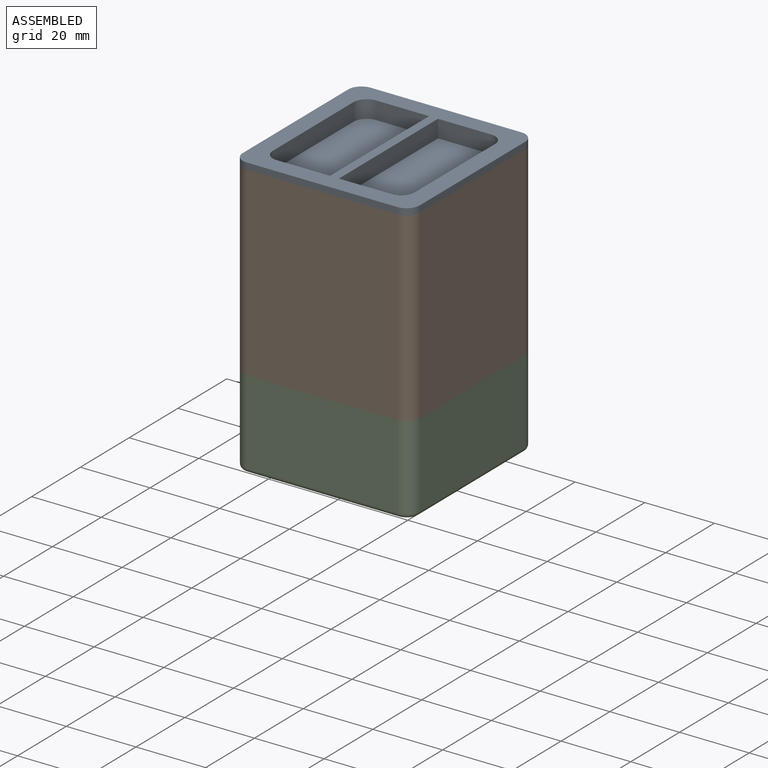
[diagram: assembled view]
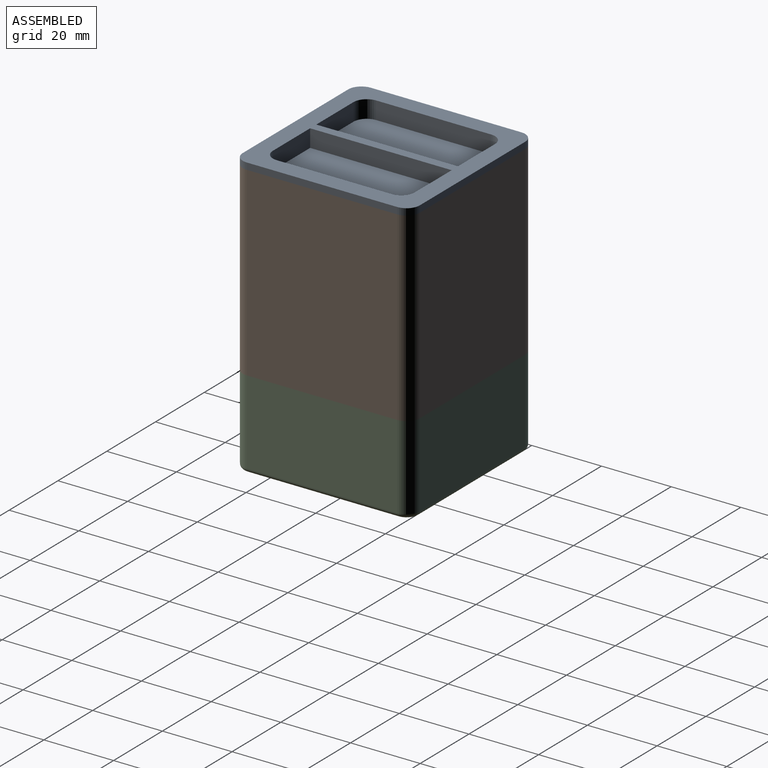
[diagram: assembled view, second angle]
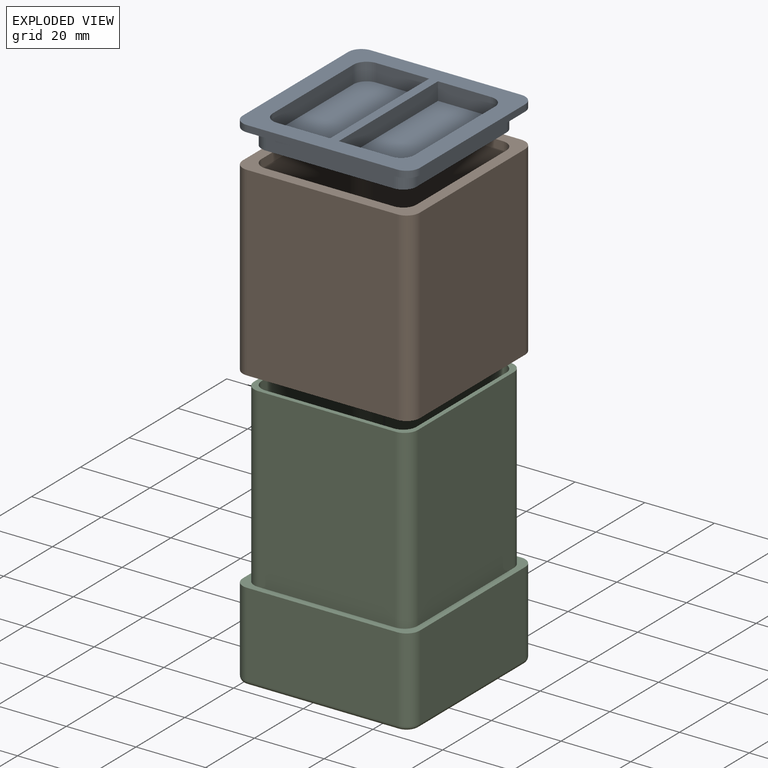
[diagram: exploded view]
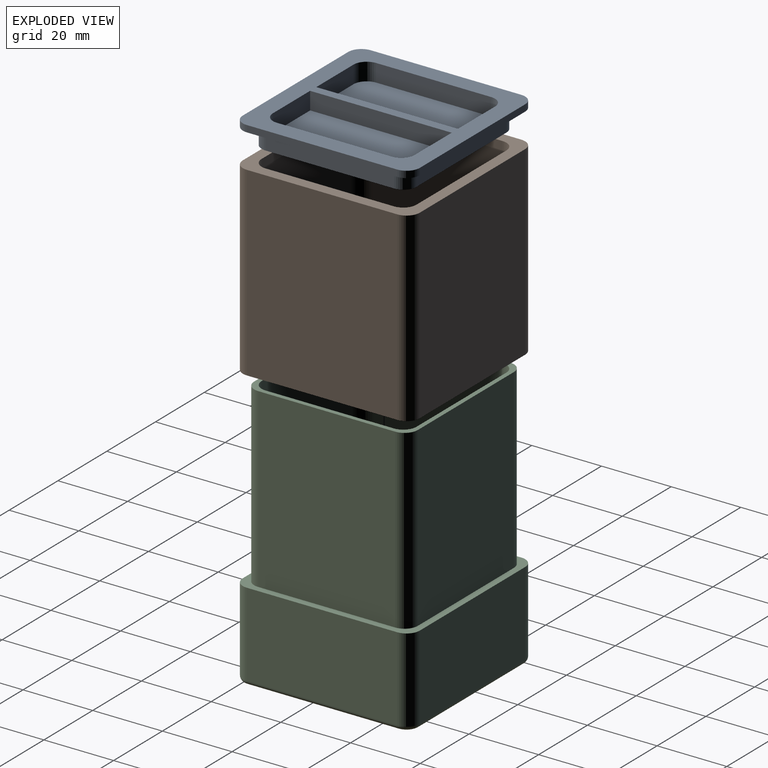
[diagram: exploded view, second angle]
ASSEMBLY  parts=3 mates=2
PART A: 33 faces, bbox 50.8x50.8x7 mm
  f0: plane 50.8x50.8mm, normal (0,0,-1), area 1032.3mm2, adj f2,f3,f4,f5,f12,f13,f14,f15
  f1: plane 50.8x50.8mm, normal (0,0,1), area 604.8mm2, adj f2,f3,f4,f5,f6,f7,f8,f9
  f2: plane 43.18x1.91mm, normal (-1,0,0), area 82.3mm2, adj f0,f1,f29,f32
  f3: plane 43.18x1.91mm, normal (0,-1,0), area 82.3mm2, adj f0,f1,f29,f30
  f4: plane 43.18x1.91mm, normal (1,0,0), area 82.3mm2, adj f0,f1,f30,f31
  f5: plane 43.18x1.91mm, normal (0,1,0), area 82.3mm2, adj f0,f1,f31,f32
  f6: plane 36.83x5.08mm, normal (0,1,0), area 187.1mm2, adj f1,f10,f25,f28
  f7: plane 36.83x5.08mm, normal (-1,0,0), area 187.1mm2, adj f1,f10,f25,f26
  f8: plane 36.83x5.08mm, normal (0,-1,0), area 187.1mm2, adj f1,f10,f26,f27
  f9: plane 36.83x5.08mm, normal (1,0,0), area 187.1mm2, adj f1,f10,f27,f28
  f10: plane 44.45x44.45mm, normal (0,0,1), area 1963.3mm2, adj f6,f7,f8,f9,f25,f26,f27,f28
  f11: plane 40.64x19.05mm, normal (0,0,-1), area 768mm2, adj f12,f13,f14,f15,f21,f22
  f12: plane 40.64x5.08mm, normal (1,0,0), area 206.5mm2, adj f0,f11,f13,f15
  f13: plane 15.24x5.08mm, normal (0,-1,0), area 77.4mm2, adj f0,f11,f12,f21
  f14: plane 33.02x5.08mm, normal (-1,0,0), area 167.7mm2, adj f0,f11,f21,f22
  f15: plane 15.24x5.08mm, normal (0,1,0), area 77.4mm2, adj f0,f11,f12,f22
  f16: plane 40.64x19.05mm, normal (0,0,-1), area 768mm2, adj f17,f18,f19,f20,f23,f24
  f17: plane 33.02x5.08mm, normal (1,0,0), area 167.7mm2, adj f0,f16,f23,f24
  f18: plane 15.24x5.08mm, normal (0,1,0), area 77.4mm2, adj f0,f16,f20,f23
  f19: plane 15.24x5.08mm, normal (0,-1,0), area 77.4mm2, adj f0,f16,f20,f24
  f20: plane 40.64x5.08mm, normal (-1,0,0), area 206.5mm2, adj f0,f16,f18,f19
  f21: cylinder r=3.81mm len=5.08mm, axis (0,0,-1), area 30.4mm2, adj f0,f11,f13,f14
  f22: cylinder r=3.81mm len=5.08mm, axis (0,0,1), area 30.4mm2, adj f0,f11,f14,f15
  f23: cylinder r=3.81mm len=5.08mm, axis (0,0,-1), area 30.4mm2, adj f0,f16,f17,f18
  f24: cylinder r=3.81mm len=5.08mm, axis (0,0,1), area 30.4mm2, adj f0,f16,f17,f19
  f25: cylinder r=3.81mm len=5.08mm, axis (0,0,-1), area 30.4mm2, adj f1,f6,f7,f10
  f26: cylinder r=3.81mm len=5.08mm, axis (0,0,1), area 30.4mm2, adj f1,f7,f8,f10
  f27: cylinder r=3.81mm len=5.08mm, axis (0,0,-1), area 30.4mm2, adj f1,f8,f9,f10
  f28: cylinder r=3.81mm len=5.08mm, axis (0,0,1), area 30.4mm2, adj f1,f6,f9,f10
  f29: cylinder r=3.81mm len=3.81mm, axis (0,0,1), area 11.4mm2, adj f0,f1,f2,f3
  f30: cylinder r=3.81mm len=3.81mm, axis (0,0,-1), area 11.4mm2, adj f0,f1,f3,f4
  f31: cylinder r=3.81mm len=3.81mm, axis (0,0,1), area 11.4mm2, adj f0,f1,f4,f5
  f32: cylinder r=3.81mm len=3.81mm, axis (0,0,-1), area 11.4mm2, adj f0,f1,f2,f5
PART B: 27 faces, bbox 50.8x50.8x53.3 mm
  f0: plane 46.99x46.99mm, normal (0,0,-1), area 232.3mm2, adj f7,f8,f9,f10,f11,f12,f13,f14
  f1: plane 53.34x43.18mm, normal (-1,0,0), area 2303.2mm2, adj f5,f6,f23,f26
  f2: plane 53.34x43.18mm, normal (0,-1,0), area 2303.2mm2, adj f5,f6,f23,f24
  f3: plane 53.34x43.18mm, normal (1,0,0), area 2303.2mm2, adj f5,f6,f24,f25
  f4: plane 53.34x43.18mm, normal (0,1,0), area 2303.2mm2, adj f5,f6,f25,f26
  f5: plane 50.8x50.8mm, normal (0,0,1), area 604.8mm2, adj f1,f2,f3,f4,f11,f12,f13,f14
  f6: plane 50.8x50.8mm, normal (0,0,-1), area 372.6mm2, adj f1,f2,f3,f4,f7,f8,f9,f10
  f7: plane 50.8x39.37mm, normal (1,0,0), area 2000mm2, adj f0,f6,f19,f21
  f8: plane 50.8x39.37mm, normal (0,-1,0), area 2000mm2, adj f0,f6,f19,f20
  f9: plane 50.8x39.37mm, normal (-1,0,0), area 2000mm2, adj f0,f6,f20,f22
  f10: plane 50.8x39.37mm, normal (0,1,0), area 2000mm2, adj f0,f6,f21,f22
  f11: plane 36.83x2.54mm, normal (1,0,0), area 93.5mm2, adj f0,f5,f15,f17
  f12: plane 36.83x2.54mm, normal (0,-1,0), area 93.5mm2, adj f0,f5,f15,f16
  f13: plane 36.83x2.54mm, normal (-1,0,0), area 93.5mm2, adj f0,f5,f16,f18
  f14: plane 36.83x2.54mm, normal (0,1,0), area 93.5mm2, adj f0,f5,f17,f18
  f15: cylinder r=3.81mm len=3.81mm, axis (0,0,1), area 15.2mm2, adj f0,f5,f11,f12
  f16: cylinder r=3.81mm len=3.81mm, axis (0,0,-1), area 15.2mm2, adj f0,f5,f12,f13
  f17: cylinder r=3.81mm len=3.81mm, axis (0,0,-1), area 15.2mm2, adj f0,f5,f11,f14
  f18: cylinder r=3.81mm len=3.81mm, axis (0,0,1), area 15.2mm2, adj f0,f5,f13,f14
  f19: cylinder r=3.81mm len=50.8mm, axis (0,0,1), area 304mm2, adj f0,f6,f7,f8
  f20: cylinder r=3.81mm len=50.8mm, axis (0,0,-1), area 304mm2, adj f0,f6,f8,f9
  f21: cylinder r=3.81mm len=50.8mm, axis (0,0,-1), area 304mm2, adj f0,f6,f7,f10
  f22: cylinder r=3.81mm len=50.8mm, axis (0,0,1), area 304mm2, adj f0,f6,f9,f10
  f23: cylinder r=3.81mm len=53.34mm, axis (0,0,1), area 319.2mm2, adj f1,f2,f5,f6
  f24: cylinder r=3.81mm len=53.34mm, axis (0,0,-1), area 319.2mm2, adj f2,f3,f5,f6
  f25: cylinder r=3.81mm len=53.34mm, axis (0,0,1), area 319.2mm2, adj f3,f4,f5,f6
  f26: cylinder r=3.81mm len=53.34mm, axis (0,0,-1), area 319.2mm2, adj f1,f4,f5,f6
PART C: 44 faces, bbox 51.4x51.4x76.2 mm
  f0: plane 50.8x50.8mm, normal (0,0,1), area 372.6mm2, adj f1,f2,f3,f4,f6,f7,f8,f9
  f1: plane 43.18x24.13mm, normal (-1,0,0), area 1041.9mm2, adj f0,f32,f35,f42
  f2: plane 43.18x24.13mm, normal (0,-1,0), area 1041.9mm2, adj f0,f32,f33,f41
  f3: plane 43.18x24.13mm, normal (1,0,0), area 1041.9mm2, adj f0,f33,f34,f37
  f4: plane 43.18x24.13mm, normal (0,1,0), area 1041.9mm2, adj f0,f34,f35,f38
  f5: plane 48.26x48.26mm, normal (0,0,-1), area 2323.5mm2, adj f36,f37,f38,f39,f40,f41,f42,f43
  f6: plane 50.8x39.37mm, normal (0,1,0), area 2000mm2, adj f0,f10,f28,f31
  f7: plane 50.8x39.37mm, normal (-1,0,0), area 2000mm2, adj f0,f10,f28,f29
  f8: plane 50.8x39.37mm, normal (0,-1,0), area 2000mm2, adj f0,f10,f29,f30
  f9: plane 50.8x39.37mm, normal (1,0,0), area 2000mm2, adj f0,f10,f30,f31
  f10: plane 46.99x46.99mm, normal (0,0,1), area 232.3mm2, adj f6,f7,f8,f9,f12,f13,f14,f15
  f11: plane 36.83x36.83mm, normal (0,0,1), area 1356.4mm2, adj f18,f21,f24,f27
  f12: plane 70.49x36.83mm, normal (-1,0,0), area 2596mm2, adj f10,f22,f23,f27
  f13: plane 70.49x36.83mm, normal (0,1,0), area 2596mm2, adj f10,f17,f23,f24
  f14: plane 70.49x36.83mm, normal (0,-1,0), area 2596mm2, adj f10,f16,f21,f22
  f15: plane 70.49x36.83mm, normal (1,0,0), area 2596mm2, adj f10,f16,f17,f18
  f16: cylinder r=3.81mm len=70.49mm, axis (0,0,-1), area 421.8mm2, adj f10,f14,f15,f19
  f17: cylinder r=3.81mm len=70.49mm, axis (0,0,1), area 421.8mm2, adj f10,f13,f15,f20
  f18: cylinder r=3.81mm len=36.83mm, axis (0,1,0), area 220.4mm2, adj f11,f15,f19,f20
  f19: sphere r=3.81mm, area 22.8mm2, adj f16,f18,f21
  f20: sphere r=3.81mm, area 22.8mm2, adj f17,f18,f24
  f21: cylinder r=3.81mm len=36.83mm, axis (1,0,0), area 220.4mm2, adj f11,f14,f19,f25
  f22: cylinder r=3.81mm len=70.49mm, axis (0,0,1), area 421.8mm2, adj f10,f12,f14,f25
  f23: cylinder r=3.81mm len=70.49mm, axis (0,0,-1), area 421.8mm2, adj f10,f12,f13,f26
  f24: cylinder r=3.81mm len=36.83mm, axis (-1,0,0), area 220.4mm2, adj f11,f13,f20,f26
  f25: sphere r=3.81mm, area 22.8mm2, adj f21,f22,f27
  f26: sphere r=3.81mm, area 22.8mm2, adj f23,f24,f27
  f27: cylinder r=3.81mm len=36.83mm, axis (0,-1,0), area 220.4mm2, adj f11,f12,f25,f26
  f28: cylinder r=3.81mm len=50.8mm, axis (0,0,-1), area 304mm2, adj f0,f6,f7,f10
  f29: cylinder r=3.81mm len=50.8mm, axis (0,0,1), area 304mm2, adj f0,f7,f8,f10
  f30: cylinder r=3.81mm len=50.8mm, axis (0,0,-1), area 304mm2, adj f0,f8,f9,f10
  f31: cylinder r=3.81mm len=50.8mm, axis (0,0,1), area 304mm2, adj f0,f6,f9,f10
  f32: cylinder r=3.81mm len=24.13mm, axis (0,0,1), area 144.4mm2, adj f0,f1,f2,f43
  f33: cylinder r=3.81mm len=24.13mm, axis (0,0,-1), area 144.4mm2, adj f0,f2,f3,f39
  f34: cylinder r=3.81mm len=24.13mm, axis (0,0,1), area 144.4mm2, adj f0,f3,f4,f36
  f35: cylinder r=3.81mm len=24.13mm, axis (0,0,-1), area 144.4mm2, adj f0,f1,f4,f40
  f36: torus R=2.54mm, axis (0,0,1), area 10.5mm2, adj f5,f34,f37,f38
  f37: cylinder r=1.27mm len=43.18mm, axis (0,1,0), area 86.1mm2, adj f3,f5,f36,f39
  f38: cylinder r=1.27mm len=43.18mm, axis (-1,0,0), area 86.1mm2, adj f4,f5,f36,f40
  f39: torus R=2.54mm, axis (0,0,1), area 10.5mm2, adj f5,f33,f37,f41
  f40: torus R=2.54mm, axis (0,0,1), area 10.5mm2, adj f5,f35,f38,f42
  f41: cylinder r=1.27mm len=43.18mm, axis (1,0,0), area 86.1mm2, adj f2,f5,f39,f43
  f42: cylinder r=1.27mm len=43.18mm, axis (0,-1,0), area 86.1mm2, adj f1,f5,f40,f43
  f43: torus R=2.54mm, axis (0,0,1), area 10.5mm2, adj f5,f32,f41,f42
PLACE A rot(axis=(1,0,0),180deg) t=(0,50.8,80.65)mm
PLACE B t=(0,0,25.4)mm
PLACE C at identity fixed
MATE fastened A.f1 <-> B.f5  axis (0,0,-1) through (0,46.99,78.74)mm
MATE fastened C.f0 <-> B.f6  axis (0,0,1) through (46.99,0,25.4)mm
